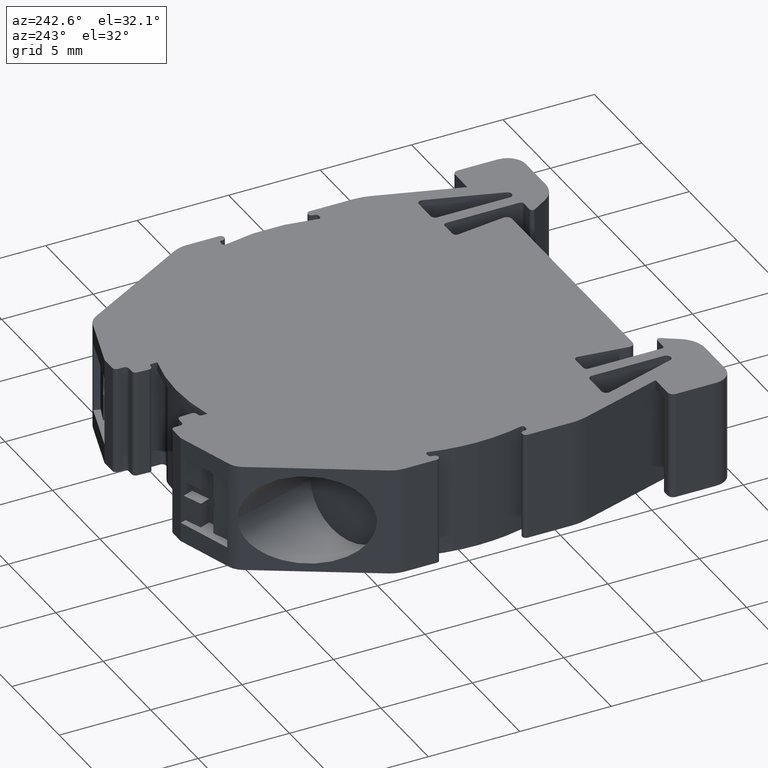
[diagram: clean part render]
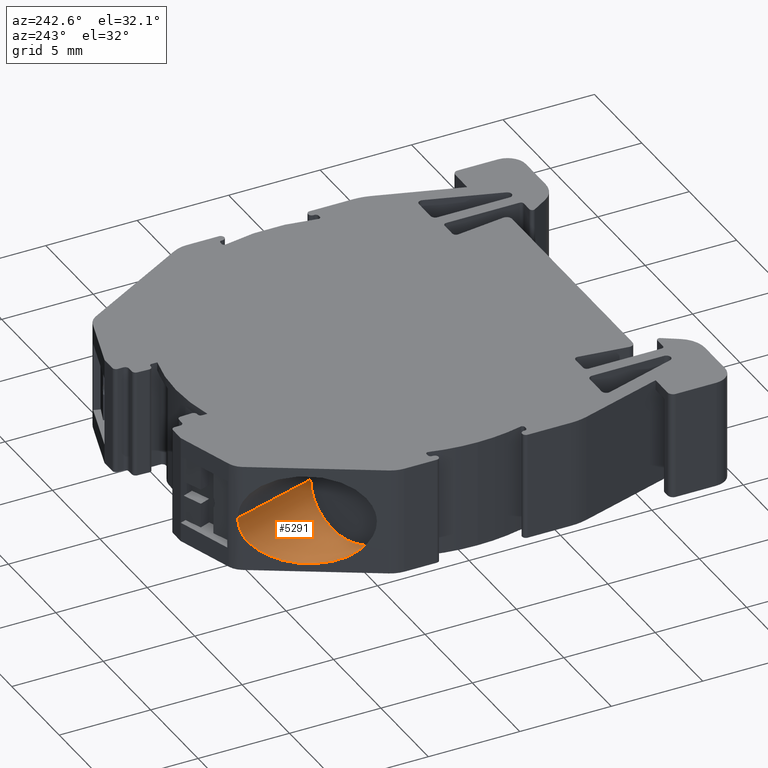
[diagram: same view with one face highlighted and labeled with its STEP entity id]
A machine part, auxiliary view. The second image highlights one B-rep face of the part: STEP entity #5291.
In plain terms, the highlighted cylindrical surface (partial cylindrical patch) has radius 2.5 mm, axis along (-0.3007, 0.9537, 0).
Its self-contained STEP definition (entity closure, byte-faithful):
#1119 = ORIENTED_EDGE ( 'NONE', *, *, #5396, .T. ) ;
#1132 = ORIENTED_EDGE ( 'NONE', *, *, #5504, .F. ) ;
#1146 = ORIENTED_EDGE ( 'NONE', *, *, #5450, .F. ) ;
#1171 = ORIENTED_EDGE ( 'NONE', *, *, #5455, .F. ) ;
#1179 = ORIENTED_EDGE ( 'NONE', *, *, #5405, .F. ) ;
#2049 = CARTESIAN_POINT ( 'NONE',  ( 280.5145071897978800, 449.1491646061516600, -48.38000000000001700 ) ) ;
#2088 = CARTESIAN_POINT ( 'NONE',  ( 280.2786402871751600, 449.8972424968989100, -48.38000000000001700 ) ) ;
#2091 = CARTESIAN_POINT ( 'NONE',  ( 283.6803376159961700, 455.7360056894546600, -48.38000000000001700 ) ) ;
#2106 = CARTESIAN_POINT ( 'NONE',  ( 283.5428208456585300, 455.5509690692698000, -49.32819594643424200 ) ) ;
#2136 = CARTESIAN_POINT ( 'NONE',  ( 285.1810362714562100, 450.9763744213944400, -48.38000000000001700 ) ) ;
#2748 = VERTEX_POINT ( 'NONE', #2049 ) ;
#2783 = VERTEX_POINT ( 'NONE', #2088 ) ;
#2796 = VERTEX_POINT ( 'NONE', #2136 ) ;
#2801 = VERTEX_POINT ( 'NONE', #2091 ) ;
#2818 = VERTEX_POINT ( 'NONE', #2106 ) ;
#3138 = EDGE_LOOP ( 'NONE', ( #1132, #1119, #1146, #1171, #1179 ) ) ;
#3190 = CARTESIAN_POINT ( 'NONE',  ( 280.5145071897978800, 449.1491646061517100, -53.38000000000003800 ) ) ;
#3205 = CARTESIAN_POINT ( 'NONE',  ( 285.1810362714562100, 450.9763744213944400, -48.38000000000001700 ) ) ;
#3206 = CARTESIAN_POINT ( 'NONE',  ( 280.5145071897978800, 449.1491646061516600, -48.38000000000001700 ) ) ;
#3223 = CARTESIAN_POINT ( 'NONE',  ( 285.1810362714561500, 450.9763744213944400, -53.38000000000003800 ) ) ;
#3800 =( BOUNDED_CURVE ( )  B_SPLINE_CURVE ( 3, ( #4749, #4730, #4760, #4761 ),
 .UNSPECIFIED., .F., .T. ) 
 B_SPLINE_CURVE_WITH_KNOTS ( ( 4, 4 ),
 ( 3.141592653589793100, 5.894169028477334000 ),
 .UNSPECIFIED. ) 
 CURVE ( )  GEOMETRIC_REPRESENTATION_ITEM ( )  RATIONAL_B_SPLINE_CURVE ( ( 1.000000000000000000, 0.4621893151999264500, 0.4621893151999264500, 1.000000000000000000 ) ) 
 REPRESENTATION_ITEM ( '' )  );
#3804 =( BOUNDED_CURVE ( )  B_SPLINE_CURVE ( 3, ( #3205, #3223, #3190, #3206 ),
 .UNSPECIFIED., .F., .T. ) 
 B_SPLINE_CURVE_WITH_KNOTS ( ( 4, 4 ),
 ( 0.0000000000000000000, 3.141592653589793100 ),
 .UNSPECIFIED. ) 
 CURVE ( )  GEOMETRIC_REPRESENTATION_ITEM ( )  RATIONAL_B_SPLINE_CURVE ( ( 1.000000000000000000, 0.3333333333333333700, 0.3333333333333333700, 1.000000000000000000 ) ) 
 REPRESENTATION_ITEM ( '' )  );
#3809 = B_SPLINE_CURVE_WITH_KNOTS ( 'NONE', 3,
 ( #4762, #4736, #4737, #4738, #4764, #4766 ),
 .UNSPECIFIED., .F., .F.,
 ( 4, 2, 4 ),
 ( 3.489511724208460100E-016, 0.0004910374806215310100, 0.0009820749612427129100 ),
 .UNSPECIFIED. ) ;
#3975 = CYLINDRICAL_SURFACE ( 'NONE', #6497, 2.500000000000009800 ) ;
#3980 = CARTESIAN_POINT ( 'NONE',  ( 280.5118885477149900, 457.4712806065720100, -48.38000000000001700 ) ) ;
#3982 = DIRECTION ( 'NONE',  ( -0.3007044655851190400, 0.9537173713302952200, 0.0000000000000000000 ) ) ;
#3996 = FACE_OUTER_BOUND ( 'NONE', #3138, .T. ) ;
#4068 = DIRECTION ( 'NONE',  ( -0.9537173713302944400, -0.3007044655851209300, 0.0000000000000000000 ) ) ;
#4543 = DIRECTION ( 'NONE',  ( -0.3007044655851190400, 0.9537173713302951100, 0.0000000000000000000 ) ) ;
#4566 = LINE ( 'NONE', #4575, #5796 ) ;
#4571 = LINE ( 'NONE', #4578, #5782 ) ;
#4575 = CARTESIAN_POINT ( 'NONE',  ( 278.1275951193892400, 456.7195194426091700, -48.38000000000001700 ) ) ;
#4578 = CARTESIAN_POINT ( 'NONE',  ( 282.8961819760407400, 458.2230417705347900, -48.38000000000001700 ) ) ;
#4584 = DIRECTION ( 'NONE',  ( -0.3007044655851190400, 0.9537173713302951100, 0.0000000000000000000 ) ) ;
#4730 = CARTESIAN_POINT ( 'NONE',  ( 280.2786402871751600, 449.8972424968989700, -51.91802660779109900 ) ) ;
#4736 = CARTESIAN_POINT ( 'NONE',  ( 283.5830560489625300, 455.6206584856460600, -49.18345785598984300 ) ) ;
#4737 = CARTESIAN_POINT ( 'NONE',  ( 283.6185009580019600, 455.6648079605345200, -49.02983606527980200 ) ) ;
#4738 = CARTESIAN_POINT ( 'NONE',  ( 283.6673622722236100, 455.7230147341308600, -48.70858612708068600 ) ) ;
#4749 = CARTESIAN_POINT ( 'NONE',  ( 280.2786402871751600, 449.8972424968989100, -48.38000000000001700 ) ) ;
#4760 = CARTESIAN_POINT ( 'NONE',  ( 282.6327842502188900, 453.9747394492208100, -52.60187044641667600 ) ) ;
#4761 = CARTESIAN_POINT ( 'NONE',  ( 283.5428208456585300, 455.5509690692698000, -49.32819594643424200 ) ) ;
#4762 = CARTESIAN_POINT ( 'NONE',  ( 283.5428208456585300, 455.5509690692698000, -49.32819594643424200 ) ) ;
#4764 = CARTESIAN_POINT ( 'NONE',  ( 283.6803376159961100, 455.7360056894547100, -48.54516798642623600 ) ) ;
#4766 = CARTESIAN_POINT ( 'NONE',  ( 283.6803376159961700, 455.7360056894546600, -48.38000000000001700 ) ) ;
#5291 = ADVANCED_FACE ( 'NONE', ( #3996 ), #3975, .F. ) ;
#5396 = EDGE_CURVE ( 'NONE', #2796, #2801, #4571, .T. ) ;
#5405 = EDGE_CURVE ( 'NONE', #2748, #2783, #4566, .T. ) ;
#5450 = EDGE_CURVE ( 'NONE', #2818, #2801, #3809, .T. ) ;
#5455 = EDGE_CURVE ( 'NONE', #2783, #2818, #3800, .T. ) ;
#5504 = EDGE_CURVE ( 'NONE', #2796, #2748, #3804, .T. ) ;
#5782 = VECTOR ( 'NONE', #4584, 1000.000000000000100 ) ;
#5796 = VECTOR ( 'NONE', #4543, 1000.000000000000100 ) ;
#6497 = AXIS2_PLACEMENT_3D ( 'NONE', #3980, #3982, #4068 ) ;